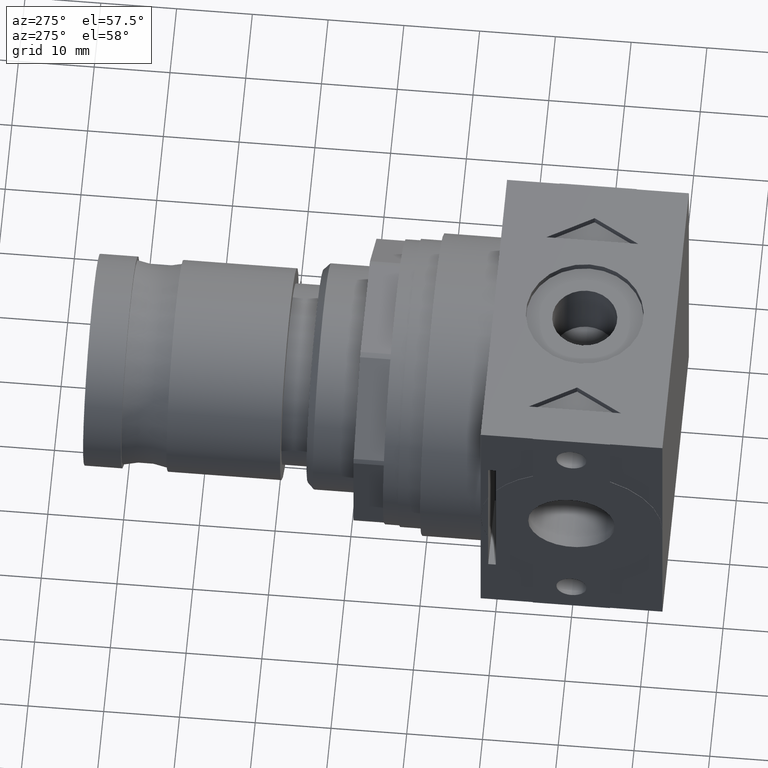
[diagram: clean part render]
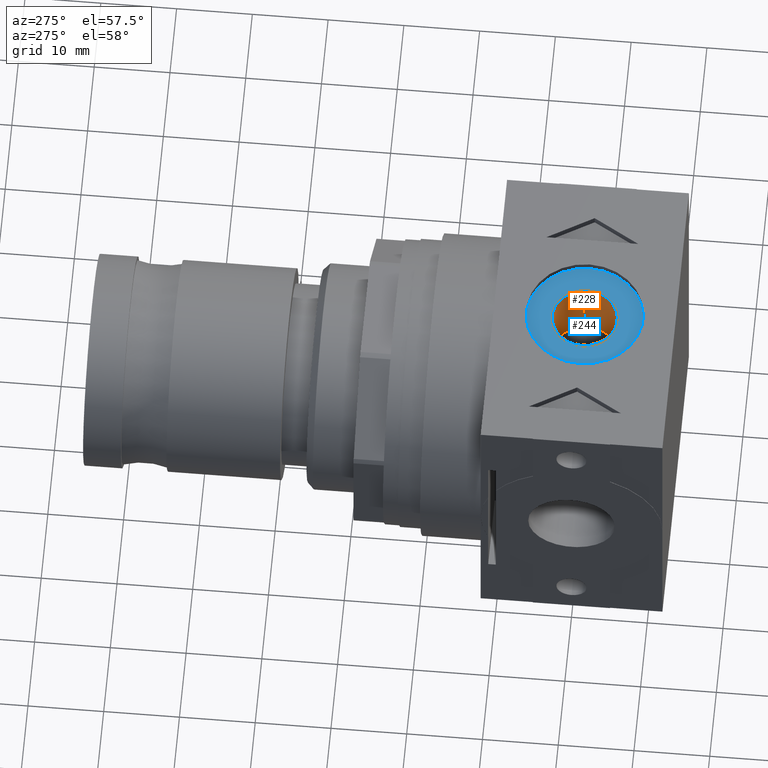
[diagram: same view with the hole feature highlighted: cylindrical wall and planar end face, labeled with their STEP entity ids]
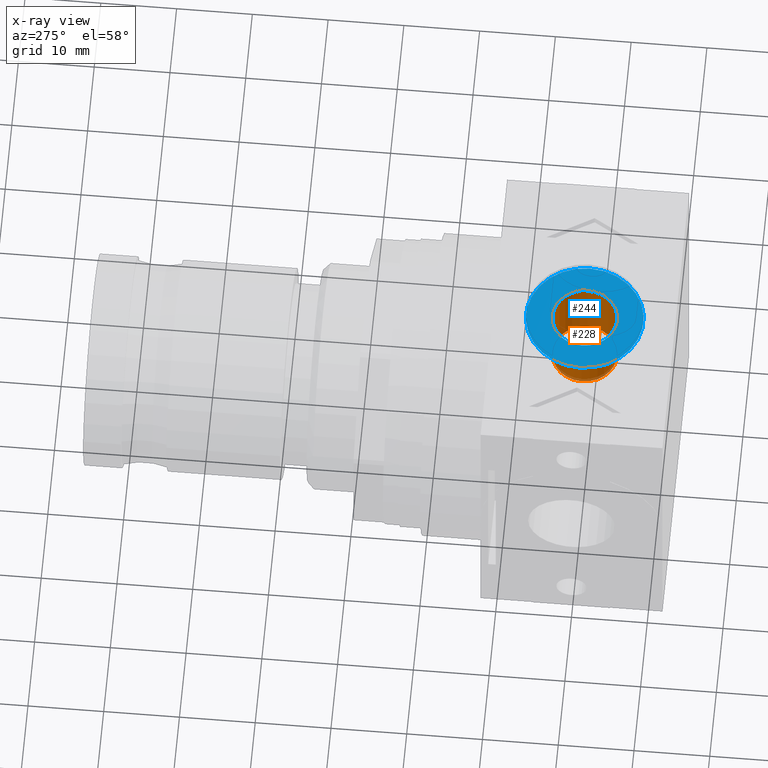
[diagram: x-ray of the same camera — body ghosted, the hole faces saturated]
A machine part, auxiliary view. The highlighted faces form one hole feature of diameter 8.566 mm: the cylindrical wall (entity #228, orange) and its adjacent planar end face (entity #244, blue) — they share a circular edge in the B-rep.
The next image is the same camera in x-ray (body ghosted, the hole faces saturated) — the bore reads through the body.
Wall:
#228 = ADVANCED_FACE( '', ( #534, #535 ), #536, .F. );
#534 = FACE_OUTER_BOUND( '', #979, .T. );
#535 = FACE_OUTER_BOUND( '', #980, .T. );
#536 = CYLINDRICAL_SURFACE( '', #981, 4.28300000000000 );
#979 = EDGE_LOOP( '', ( #1445 ) );
#980 = EDGE_LOOP( '', ( #1446 ) );
#981 = AXIS2_PLACEMENT_3D( '', #1447, #1448, #1449 );
#1445 = ORIENTED_EDGE( '', *, *, #2457, .T. );
#1446 = ORIENTED_EDGE( '', *, *, #2458, .F. );
#1447 = CARTESIAN_POINT( '', ( 0.000000000000000, 0.000000000000000, 7.72720879706083 ) );
#1448 = DIRECTION( '', ( 0.000000000000000, -0.000000000000000, 1.00000000000000 ) );
#1449 = DIRECTION( '', ( -1.00000000000000, 0.000000000000000, 0.000000000000000 ) );
#2457 = EDGE_CURVE( '', #2876, #2876, #2877, .T. );
#2458 = EDGE_CURVE( '', #2878, #2878, #2879, .T. );
#2876 = VERTEX_POINT( '', #3466 );
#2877 = CIRCLE( '', #3467, 4.28300000000000 );
#2878 = VERTEX_POINT( '', #3468 );
#2879 = CIRCLE( '', #3469, 4.28300000000000 );
#3466 = CARTESIAN_POINT( '', ( -4.28300000000000, 0.000000000000000, 10.2000000000000 ) );
#3467 = AXIS2_PLACEMENT_3D( '', #4188, #4189, #4190 );
#3468 = CARTESIAN_POINT( '', ( -4.28300000000000, 0.000000000000000, 19.0000000000000 ) );
#3469 = AXIS2_PLACEMENT_3D( '', #4191, #4192, #4193 );
#4188 = CARTESIAN_POINT( '', ( 0.000000000000000, 0.000000000000000, 10.2000000000000 ) );
#4189 = DIRECTION( '', ( -0.000000000000000, 0.000000000000000, -1.00000000000000 ) );
#4190 = DIRECTION( '', ( -1.00000000000000, 0.000000000000000, 0.000000000000000 ) );
#4191 = CARTESIAN_POINT( '', ( 0.000000000000000, 0.000000000000000, 19.0000000000000 ) );
#4192 = DIRECTION( '', ( -0.000000000000000, 0.000000000000000, -1.00000000000000 ) );
#4193 = DIRECTION( '', ( -1.00000000000000, 0.000000000000000, 0.000000000000000 ) );
End face:
#244 = ADVANCED_FACE( '', ( #562, #563 ), #564, .T. );
#562 = FACE_BOUND( '', #1007, .T. );
#563 = FACE_OUTER_BOUND( '', #1008, .T. );
#564 = PLANE( '', #1009 );
#1007 = EDGE_LOOP( '', ( #1506 ) );
#1008 = EDGE_LOOP( '', ( #1507 ) );
#1009 = AXIS2_PLACEMENT_3D( '', #1508, #1509, #1510 );
#1506 = ORIENTED_EDGE( '', *, *, #2458, .T. );
#1507 = ORIENTED_EDGE( '', *, *, #2491, .F. );
#1508 = CARTESIAN_POINT( '', ( 0.000000000000000, 7.75000000000000, 19.0000000000000 ) );
#1509 = DIRECTION( '', ( 0.000000000000000, 0.000000000000000, 1.00000000000000 ) );
#1510 = DIRECTION( '', ( 1.00000000000000, 0.000000000000000, -0.000000000000000 ) );
#2458 = EDGE_CURVE( '', #2878, #2878, #2879, .T. );
#2491 = EDGE_CURVE( '', #2932, #2932, #2933, .T. );
#2878 = VERTEX_POINT( '', #3468 );
#2879 = CIRCLE( '', #3469, 4.28300000000000 );
#2932 = VERTEX_POINT( '', #3539 );
#2933 = CIRCLE( '', #3540, 7.75000000000000 );
#3468 = CARTESIAN_POINT( '', ( -4.28300000000000, 0.000000000000000, 19.0000000000000 ) );
#3469 = AXIS2_PLACEMENT_3D( '', #4191, #4192, #4193 );
#3539 = CARTESIAN_POINT( '', ( -7.75000000000000, 0.000000000000000, 19.0000000000000 ) );
#3540 = AXIS2_PLACEMENT_3D( '', #4232, #4233, #4234 );
#4191 = CARTESIAN_POINT( '', ( 0.000000000000000, 0.000000000000000, 19.0000000000000 ) );
#4192 = DIRECTION( '', ( -0.000000000000000, 0.000000000000000, -1.00000000000000 ) );
#4193 = DIRECTION( '', ( -1.00000000000000, 0.000000000000000, 0.000000000000000 ) );
#4232 = CARTESIAN_POINT( '', ( 0.000000000000000, 0.000000000000000, 19.0000000000000 ) );
#4233 = DIRECTION( '', ( -0.000000000000000, 0.000000000000000, -1.00000000000000 ) );
#4234 = DIRECTION( '', ( -1.00000000000000, 0.000000000000000, 0.000000000000000 ) );